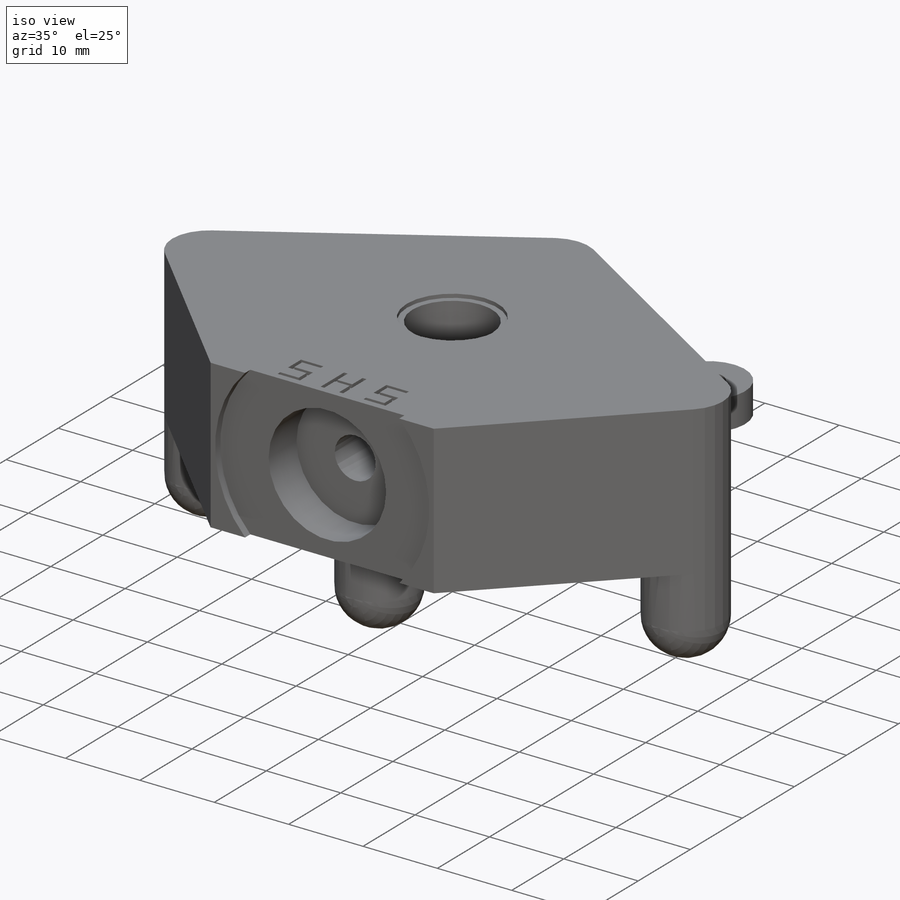
[diagram: iso view]
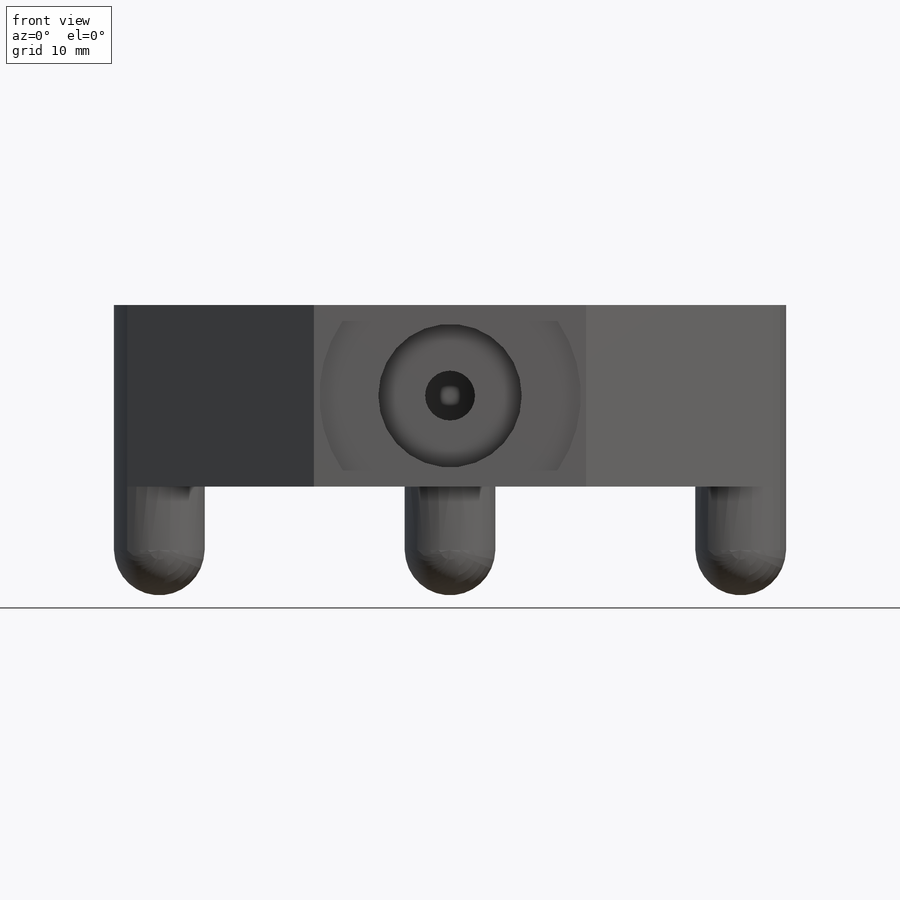
[diagram: front view]
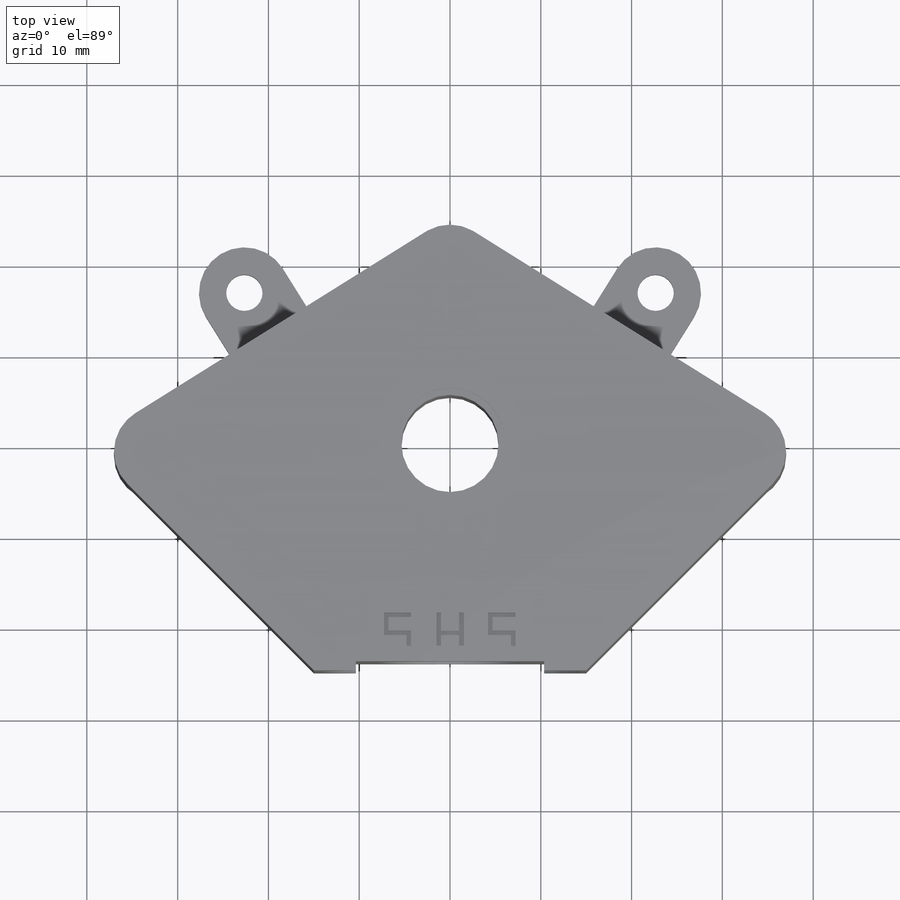
[diagram: top view]
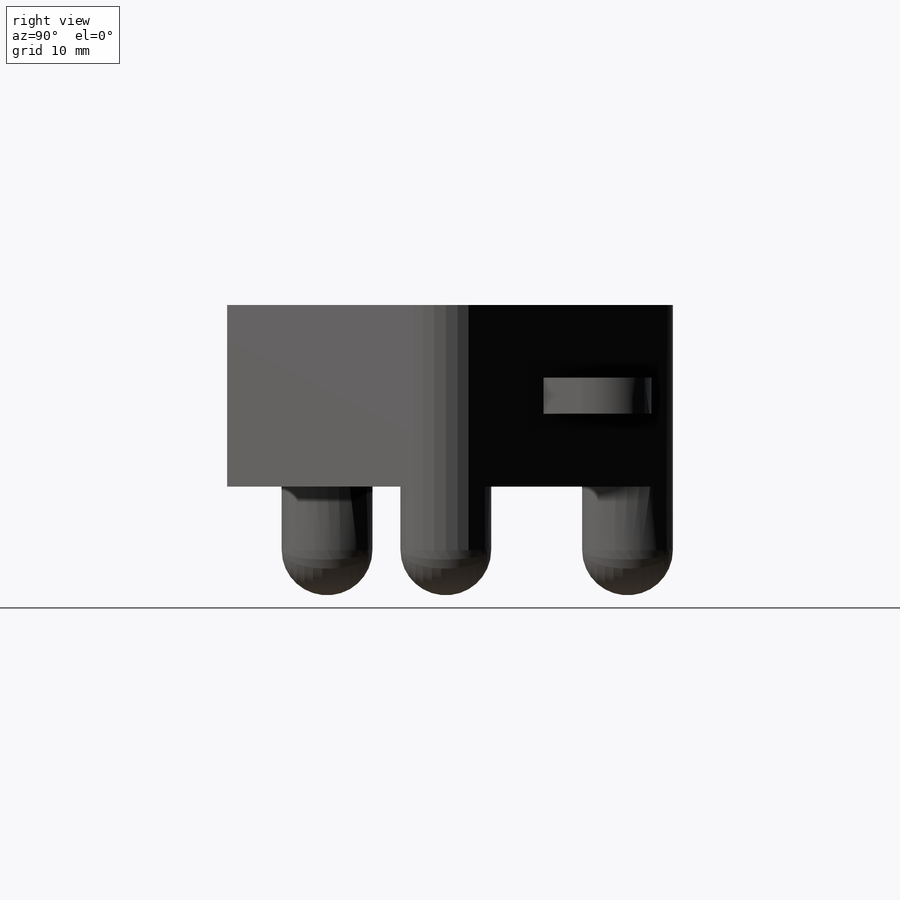
[diagram: right view]
SOLIDWORKS PART (.sldprt)
format: sldprt  version: not decoded by parser v0  size: 434,688 bytes
history: native  units: mm
features: sketch x15, cut_extrude x9, fillet x7, extrude x6, material x1, chamfer x1 (+16 scaffold rows collapsed)
feature tree (55):
  scaffold x16  (default folders/planes/origin — collapsed)
  material  "Material <not specified>"
  sketch  "Sketch1"  dims[c1.D1=10.7mm c1.D2=80.0mm c2.D1=80.0mm c2.D2=50.0mm]
  extrude  "Boss-Extrude1"  Depth=20mm
  sketch  "Sketch2"  dims[D1=10.7mm]
  cut_extrude  "Cut-Extrude1"  Depth=20mm
  sketch  "Sketch4"  dims[D1=5.5mm]
  cut_extrude  "Cut-Extrude2"  [1 undecoded]
  sketch  "Sketch5"
  cut_extrude  "Cut-Extrude3"  Depth=20mm
  sketch  "Sketch6"  dims[D1=4.0mm]
  extrude  "Boss-Extrude2"  Depth=10mm
  fillet  "Fillet1"  Radius=5mm
  sketch  "Sketch8"  dims[D1=~2.264055mm]
  cut_extrude  "Cut-Extrude4"  Depth=10mm
  sketch  "Sketch9"  dims[D1=10.0mm]
  extrude  "Boss-Extrude3"  Depth=10mm
  fillet  "Fillet2"  Radius=5mm
  sketch  "Sketch10"  dims[D1=4.0mm]
  cut_extrude  "Cut-Extrude5"  Depth=10mm
  fillet  "Fillet4"  Radius=5mm
  sketch  "Sketch13"  dims[D1=12.25mm]
  cut_extrude  "Cut-Extrude7"  Depth=0.5mm
  sketch  "Sketch20"  dims[c1.D1=3.0mm c1.D5=~2.83829mm c2.D1=0.5mm c2.D2=0.5mm c2.D3=0.5mm c2.D4=0.5mm c2.D5=0.5mm c2.D6=2.5mm c3.D6=~127.568592deg c3.D4=2.0mm c3.D5=24.0mm c4.D6=24.0mm c4.D7=~8.809381mm c4.D8=0.5mm c4.D2=~0.472124mm c4.D1=0.5mm c5.D2=0.5mm c5.D3=0.5mm c5.D4=2.0mm]
  cut_extrude  "Cut-Extrude14"  Depth=0.5mm
  sketch  "Sketch24"  dims[D1=15.8mm]
  cut_extrude  "Cut-Extrude15"  Depth=6.35mm
  sketch  "Sketch25"  dims[D1=28.8mm]
  cut_extrude  "Cut-Extrude16"  Depth=1mm
  sketch  "Sketch26"
  extrude  "Boss-Extrude8"  Depth=12mm
  fillet  "Fillet10"  Radius=5mm
  chamfer  "Chamfer1"  Distance=25mm Angle=45deg
  fillet  "Fillet12"  Radius=5mm
  sketch  "Sketch28"
  extrude  "Boss-Extrude9"  Depth=12mm
  fillet  "Fillet13"  Radius=5mm
  sketch  "Sketch29"  dims[D1=~5.196767mm]
  extrude  "Boss-Extrude10"  Depth=12mm
  fillet  "Fillet14"  Radius=5mm
decode coverage: 34 of 38 modeling features carry decoded parameters
note: ~ marks probable driven/reference dimensions
note: 1 parameter value undecoded
note: suppression state not decoded; provenance and decode notes live in map.json
